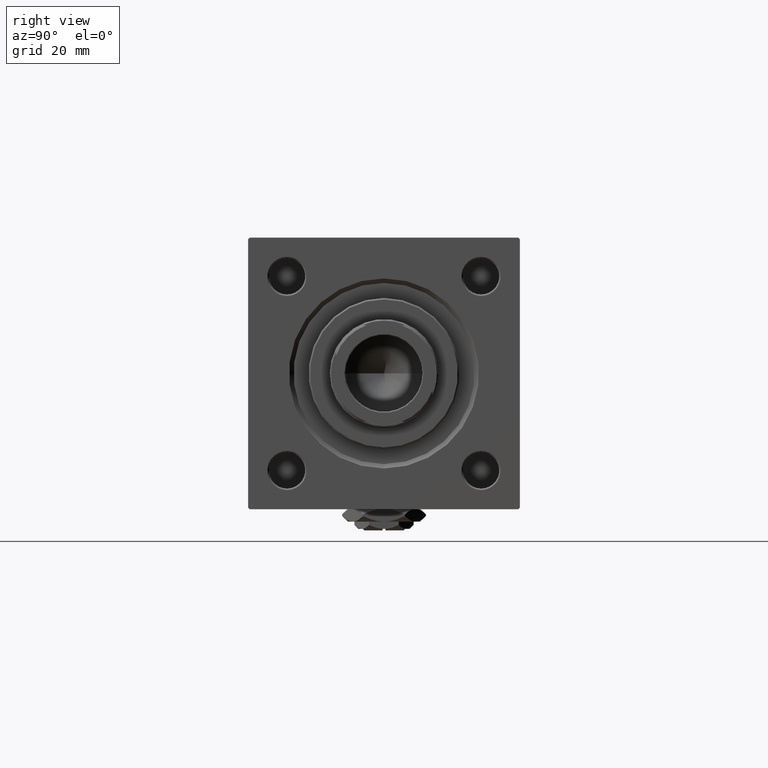
[diagram: clean part render]
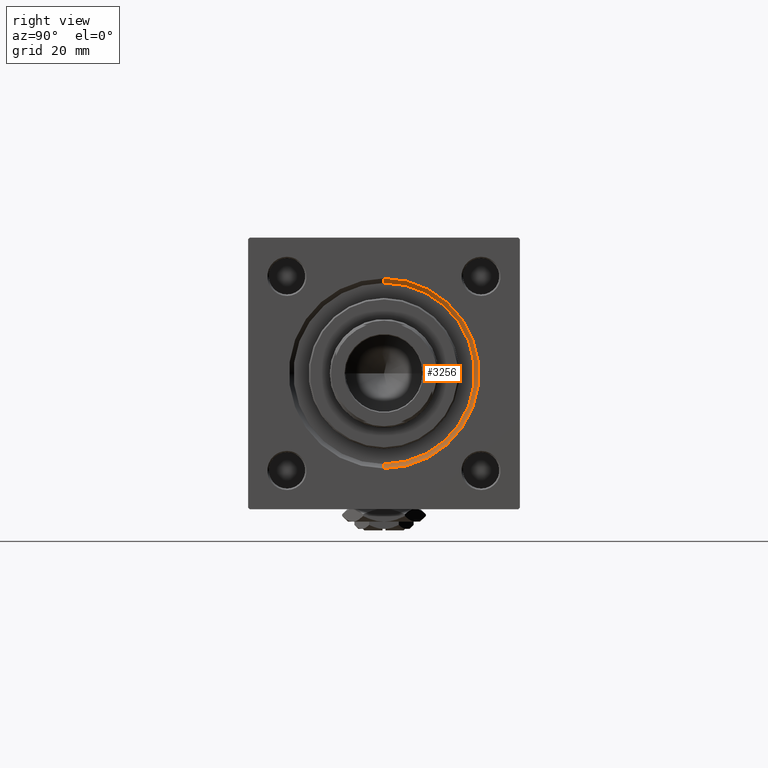
[diagram: same view with one face highlighted and labeled with its STEP entity id]
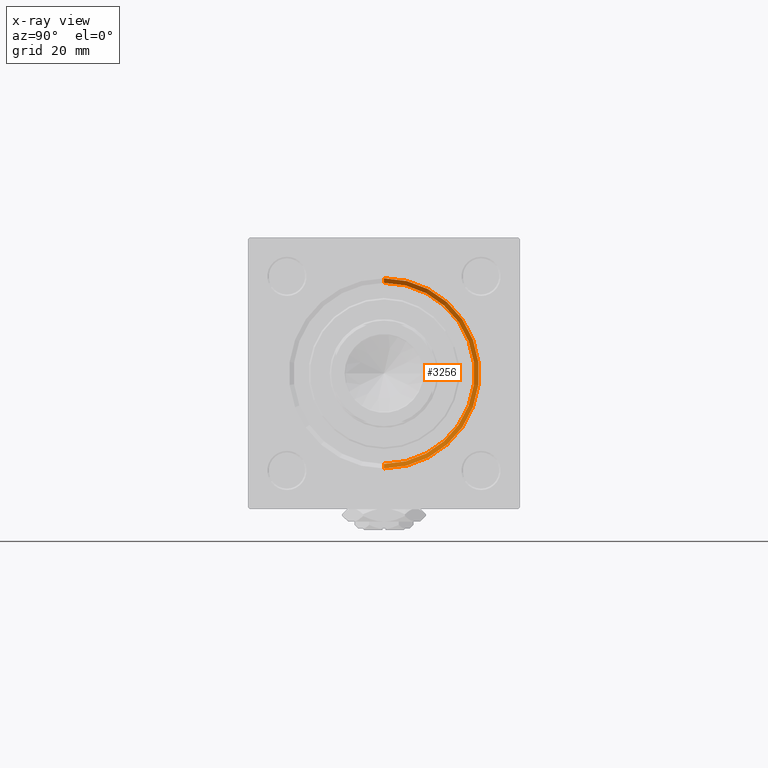
[diagram: x-ray of the same camera — body ghosted, the highlighted face saturated]
A machine part, right view. The second image highlights one B-rep face of the part: STEP entity #3256.
The next image is the same camera in x-ray: the body ghosted, the highlighted face saturated — about 0% of this face is hidden behind the body in this view.
In plain terms, the highlighted conical surface has half-angle 45 deg.
Its self-contained STEP definition (entity closure, byte-faithful):
#1924 = ORIENTED_EDGE ( 'NONE', *, *, #6857, .F. ) ;
#2460 = DIRECTION ( 'NONE',  ( 0.000000000000000000, 0.000000000000000000, 1.000000000000000000 ) ) ;
#3248 = ORIENTED_EDGE ( 'NONE', *, *, #35623, .T. ) ;
#3256 = ADVANCED_FACE ( 'NONE', ( #21853 ), #43129, .F. ) ;
#5443 = CARTESIAN_POINT ( 'NONE',  ( 153.5000000000000000, 3.673940397442059178E-15, 30.00000000000000000 ) ) ;
#6728 = DIRECTION ( 'NONE',  ( 0.7071067811865474617, 0.000000000000000000, -0.7071067811865474617 ) ) ;
#6857 = EDGE_CURVE ( 'NONE', #16480, #15015, #8009, .T. ) ;
#8009 = CIRCLE ( 'NONE', #23938, 30.00000000000000000 ) ;
#8420 = VECTOR ( 'NONE', #21462, 1000.000000000000114 ) ;
#8665 = EDGE_CURVE ( 'NONE', #32564, #35199, #33966, .T. ) ;
#8761 = AXIS2_PLACEMENT_3D ( 'NONE', #17152, #37373, #21599 ) ;
#9521 = CARTESIAN_POINT ( 'NONE',  ( 155.0000000000000000, 3.857637417314162689E-15, 31.50000000000000000 ) ) ;
#13118 = DIRECTION ( 'NONE',  ( 0.000000000000000000, 0.000000000000000000, 1.000000000000000000 ) ) ;
#13514 = CARTESIAN_POINT ( 'NONE',  ( 155.0000000000000000, 0.000000000000000000, 0.000000000000000000 ) ) ;
#13627 = CARTESIAN_POINT ( 'NONE',  ( 153.5000000000000000, 0.000000000000000000, 0.000000000000000000 ) ) ;
#15015 = VERTEX_POINT ( 'NONE', #48166 ) ;
#16480 = VERTEX_POINT ( 'NONE', #27318 ) ;
#17152 = CARTESIAN_POINT ( 'NONE',  ( 153.5000000000000000, 0.000000000000000000, 0.000000000000000000 ) ) ;
#19777 = ORIENTED_EDGE ( 'NONE', *, *, #47604, .F. ) ;
#21462 = DIRECTION ( 'NONE',  ( 0.7071067811865474617, 8.659560562354932858E-17, 0.7071067811865474617 ) ) ;
#21599 = DIRECTION ( 'NONE',  ( 0.000000000000000000, 0.000000000000000000, -1.000000000000000000 ) ) ;
#21853 = FACE_OUTER_BOUND ( 'NONE', #22088, .T. ) ;
#22088 = EDGE_LOOP ( 'NONE', ( #19777, #1924, #3248, #35101 ) ) ;
#23938 = AXIS2_PLACEMENT_3D ( 'NONE', #13627, #45399, #13118 ) ;
#25406 = LINE ( 'NONE', #5443, #8420 ) ;
#27318 = CARTESIAN_POINT ( 'NONE',  ( 153.5000000000000000, 0.000000000000000000, -30.00000000000000000 ) ) ;
#31152 = LINE ( 'NONE', #47162, #37425 ) ;
#32564 = VERTEX_POINT ( 'NONE', #9521 ) ;
#33966 = CIRCLE ( 'NONE', #40679, 31.50000000000000000 ) ;
#35101 = ORIENTED_EDGE ( 'NONE', *, *, #8665, .F. ) ;
#35199 = VERTEX_POINT ( 'NONE', #41985 ) ;
#35623 = EDGE_CURVE ( 'NONE', #16480, #35199, #31152, .T. ) ;
#37373 = DIRECTION ( 'NONE',  ( 1.000000000000000000, 0.000000000000000000, 0.000000000000000000 ) ) ;
#37425 = VECTOR ( 'NONE', #6728, 1000.000000000000114 ) ;
#40679 = AXIS2_PLACEMENT_3D ( 'NONE', #13514, #46056, #2460 ) ;
#41985 = CARTESIAN_POINT ( 'NONE',  ( 155.0000000000000000, 0.000000000000000000, -31.50000000000000000 ) ) ;
#43129 = CONICAL_SURFACE ( 'NONE', #8761, 30.00000000000000000, 0.7853981633974482790 ) ;
#45399 = DIRECTION ( 'NONE',  ( 1.000000000000000000, 0.000000000000000000, 0.000000000000000000 ) ) ;
#46056 = DIRECTION ( 'NONE',  ( -1.000000000000000000, -0.000000000000000000, -0.000000000000000000 ) ) ;
#47162 = CARTESIAN_POINT ( 'NONE',  ( 153.5000000000000000, 0.000000000000000000, -30.00000000000000000 ) ) ;
#47604 = EDGE_CURVE ( 'NONE', #15015, #32564, #25406, .T. ) ;
#48166 = CARTESIAN_POINT ( 'NONE',  ( 153.5000000000000000, 3.673940397442059178E-15, 30.00000000000000000 ) ) ;